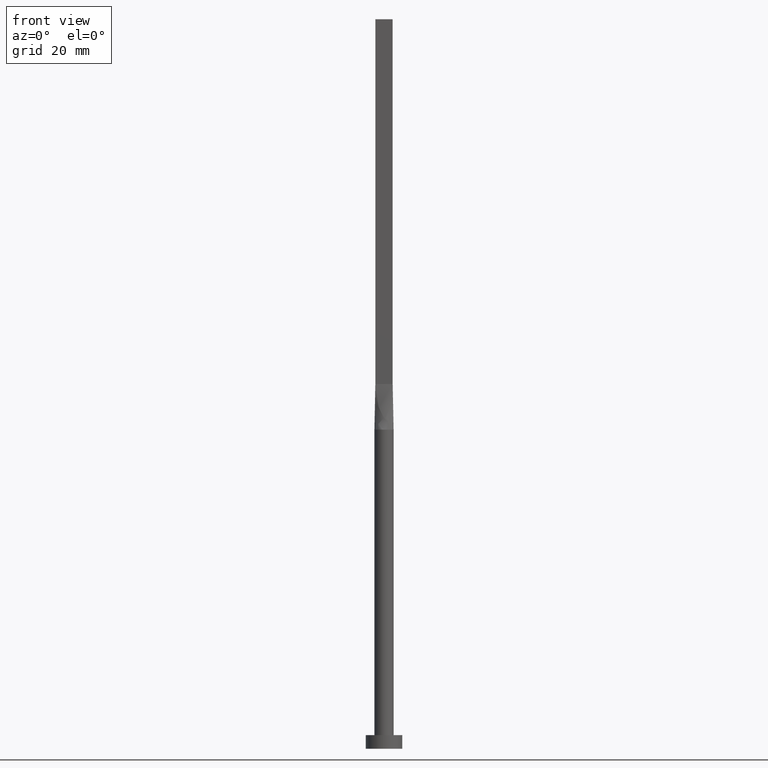
[diagram: clean part render]
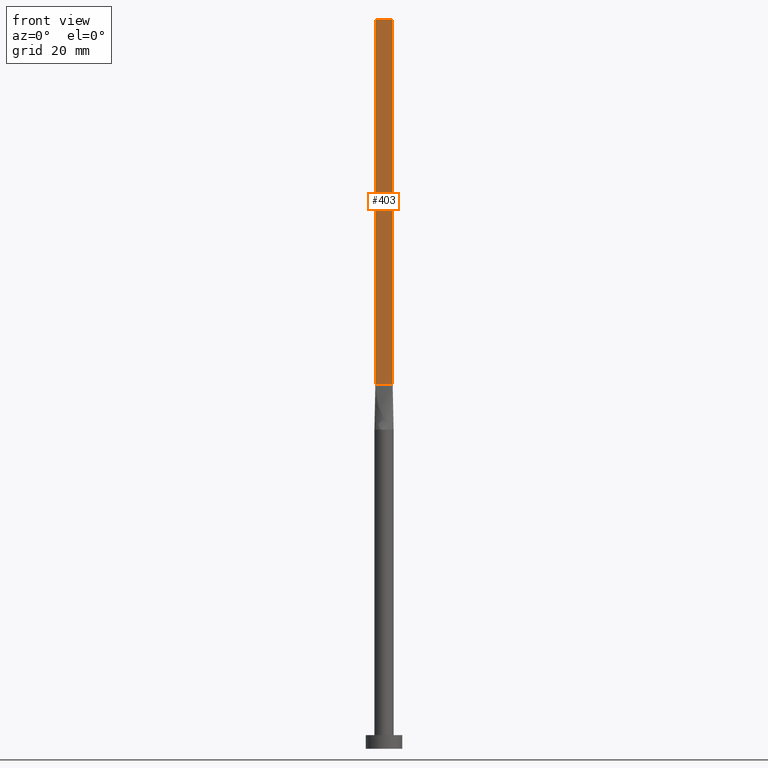
[diagram: same view with one face highlighted and labeled with its STEP entity id]
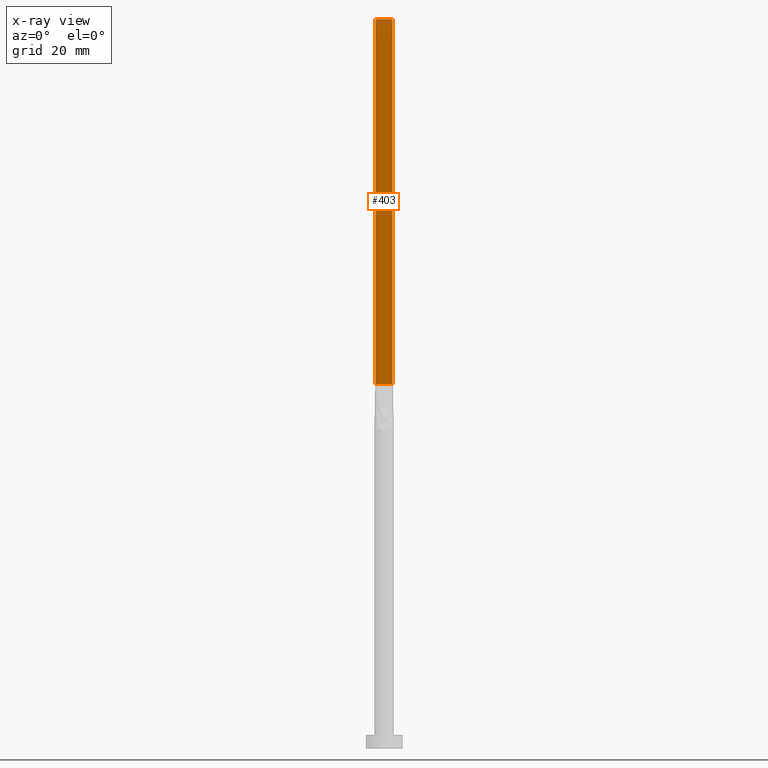
[diagram: x-ray of the same camera — body ghosted, the highlighted face saturated]
A machine part, front view. The second image highlights one B-rep face of the part: STEP entity #403.
The next image is the same camera in x-ray: the body ghosted, the highlighted face saturated — about 0% of this face is hidden behind the body in this view.
In plain terms, the highlighted planar face has unit normal (0, 1, -0).
Its self-contained STEP definition (entity closure, byte-faithful):
#4 = CARTESIAN_POINT ( 'NONE',  ( -1.899999999999999911, -0.4999999999999995559, 80.00000000000000000 ) ) ;
#13 = ORIENTED_EDGE ( 'NONE', *, *, #35, .T. ) ;
#31 = VECTOR ( 'NONE', #314, 1000.000000000000000 ) ;
#35 = EDGE_CURVE ( 'NONE', #465, #505, #451, .T. ) ;
#38 = PLANE ( 'NONE',  #55 ) ;
#39 = VERTEX_POINT ( 'NONE', #54 ) ;
#54 = CARTESIAN_POINT ( 'NONE',  ( 1.899999999999999023, -0.4999999999999997780, 160.0000000000000000 ) ) ;
#55 = AXIS2_PLACEMENT_3D ( 'NONE', #404, #87, #329 ) ;
#86 = LINE ( 'NONE', #498, #397 ) ;
#87 = DIRECTION ( 'NONE',  ( 5.706327223607918787E-17, 1.000000000000000000, -0.000000000000000000 ) ) ;
#124 = LINE ( 'NONE', #399, #31 ) ;
#198 = LINE ( 'NONE', #482, #570 ) ;
#250 = CARTESIAN_POINT ( 'NONE',  ( 1.899999999999999023, -0.4999999999999997780, 80.00000000000000000 ) ) ;
#265 = DIRECTION ( 'NONE',  ( -0.000000000000000000, -0.000000000000000000, -1.000000000000000000 ) ) ;
#275 = EDGE_CURVE ( 'NONE', #39, #505, #124, .T. ) ;
#278 = CARTESIAN_POINT ( 'NONE',  ( -1.899999999999999911, -0.4999999999999995559, 80.00000000000000000 ) ) ;
#314 = DIRECTION ( 'NONE',  ( -0.000000000000000000, -0.000000000000000000, -1.000000000000000000 ) ) ;
#325 = CARTESIAN_POINT ( 'NONE',  ( -1.899999999999999911, -0.4999999999999995559, 160.0000000000000000 ) ) ;
#329 = DIRECTION ( 'NONE',  ( -1.000000000000000000, 5.706327223607918787E-17, 0.000000000000000000 ) ) ;
#350 = VECTOR ( 'NONE', #459, 1000.000000000000000 ) ;
#372 = ORIENTED_EDGE ( 'NONE', *, *, #395, .T. ) ;
#395 = EDGE_CURVE ( 'NONE', #481, #465, #86, .T. ) ;
#397 = VECTOR ( 'NONE', #265, 1000.000000000000000 ) ;
#399 = CARTESIAN_POINT ( 'NONE',  ( 1.899999999999999023, -0.4999999999999997780, 160.0000000000000000 ) ) ;
#401 = ORIENTED_EDGE ( 'NONE', *, *, #275, .F. ) ;
#403 = ADVANCED_FACE ( 'NONE', ( #495 ), #38, .F. ) ;
#404 = CARTESIAN_POINT ( 'NONE',  ( -1.899999999999999911, -0.4999999999999995559, 160.0000000000000000 ) ) ;
#422 = EDGE_LOOP ( 'NONE', ( #13, #401, #568, #372 ) ) ;
#451 = LINE ( 'NONE', #4, #350 ) ;
#459 = DIRECTION ( 'NONE',  ( 1.000000000000000000, -5.706327223607918787E-17, 0.000000000000000000 ) ) ;
#465 = VERTEX_POINT ( 'NONE', #278 ) ;
#477 = DIRECTION ( 'NONE',  ( 1.000000000000000000, -5.706327223607920020E-17, 0.000000000000000000 ) ) ;
#481 = VERTEX_POINT ( 'NONE', #325 ) ;
#482 = CARTESIAN_POINT ( 'NONE',  ( -1.899999999999999911, -0.4999999999999995559, 160.0000000000000000 ) ) ;
#495 = FACE_OUTER_BOUND ( 'NONE', #422, .T. ) ;
#498 = CARTESIAN_POINT ( 'NONE',  ( -1.899999999999999911, -0.4999999999999995559, 160.0000000000000000 ) ) ;
#505 = VERTEX_POINT ( 'NONE', #250 ) ;
#540 = EDGE_CURVE ( 'NONE', #481, #39, #198, .T. ) ;
#568 = ORIENTED_EDGE ( 'NONE', *, *, #540, .F. ) ;
#570 = VECTOR ( 'NONE', #477, 1000.000000000000000 ) ;